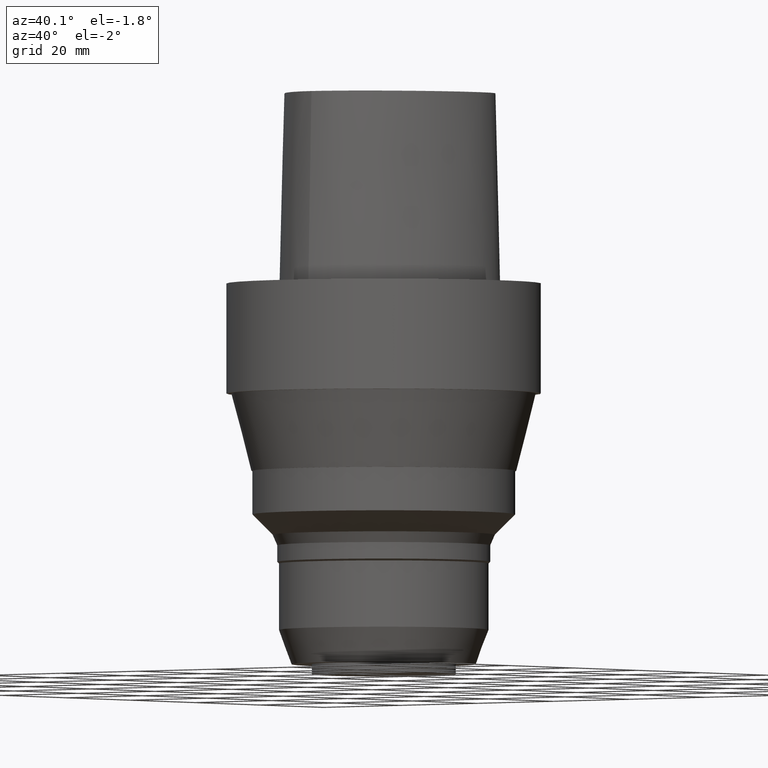
[diagram: clean part render]
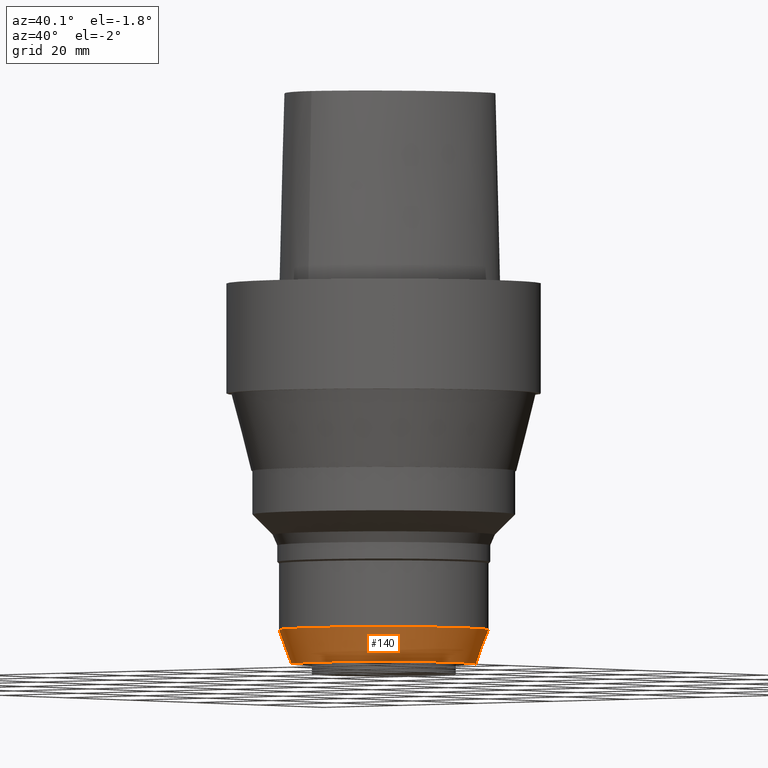
[diagram: same view with one face highlighted and labeled with its STEP entity id]
A machine part, auxiliary view. The second image highlights one B-rep face of the part: STEP entity #140.
In plain terms, the highlighted conical surface has half-angle 20 deg.
Its self-contained STEP definition (entity closure, byte-faithful):
#75=EDGE_CURVE('Unnamed[1]',#201,#201,#202,.T.);
#140=ADVANCED_FACE('Unnamed[1]',(#301,#302),#303,.T.);
#158=EDGE_CURVE('Unnamed[1]',#324,#324,#325,.T.);
#201=VERTEX_POINT('',#384);
#202=CIRCLE('',#385,20.9999999999999);
#301=FACE_BOUND('',#663,.T.);
#302=FACE_BOUND('',#664,.T.);
#303=CONICAL_SURFACE('',#665,19.7499999999999,0.349065850398807);
#324=VERTEX_POINT('',#726);
#325=CIRCLE('',#727,18.4999999999999);
#384=CARTESIAN_POINT('',(4.24531812631753E-015,20.9999999999999,-69.3313064513504));
#385=AXIS2_PLACEMENT_3D('',#761,#762,#763);
#663=EDGE_LOOP('',(#875));
#664=EDGE_LOOP('',(#876));
#665=AXIS2_PLACEMENT_3D('',#877,#878,#879);
#726=CARTESIAN_POINT('',(4.66590430475069E-015,18.4999999999999,-76.1999999999882));
#727=AXIS2_PLACEMENT_3D('',#893,#894,#895);
#761=CARTESIAN_POINT('',(4.24531812631753E-015,8.49063625263505E-015,-69.3313064513504));
#762=DIRECTION('',(6.12323399573677E-017,1.22464679914735E-016,-1.0));
#763=DIRECTION('',(-1.23259516440783E-032,1.0,1.22464679914735E-016));
#875=ORIENTED_EDGE('',*,*,#158,.F.);
#876=ORIENTED_EDGE('',*,*,#75,.T.);
#877=CARTESIAN_POINT('',(4.45561121553411E-015,8.91122243106822E-015,-72.7656532256693));
#878=DIRECTION('',(-6.12323399573677E-017,-1.22464679914735E-016,1.0));
#879=DIRECTION('',(-1.23259516440783E-032,1.0,1.22464679914735E-016));
#893=CARTESIAN_POINT('',(4.66590430475069E-015,9.33180860950138E-015,-76.1999999999882));
#894=DIRECTION('',(6.12323399573677E-017,1.22464679914735E-016,-1.0));
#895=DIRECTION('',(-1.23259516440783E-032,1.0,1.22464679914735E-016));